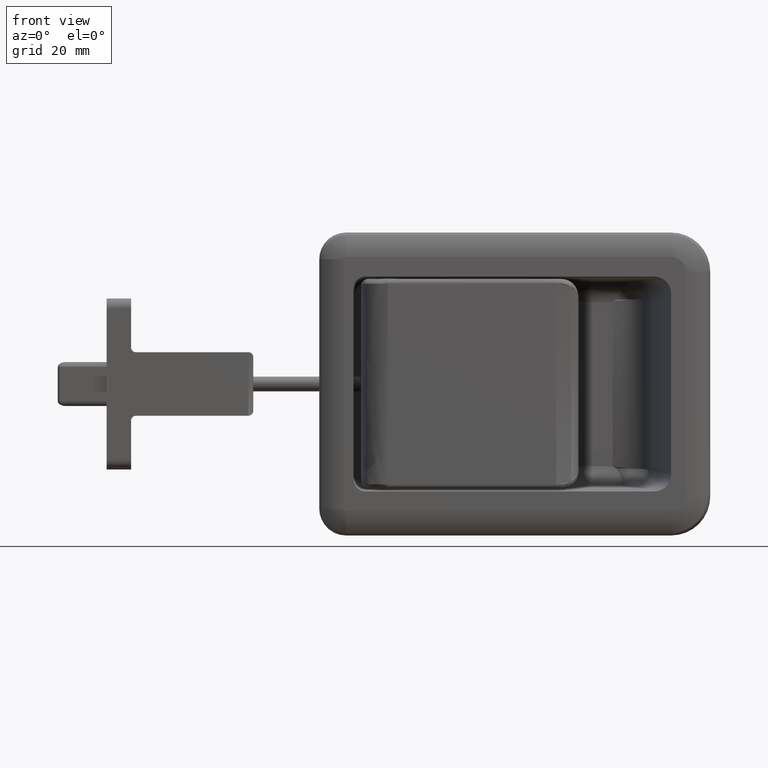
[diagram: clean part render]
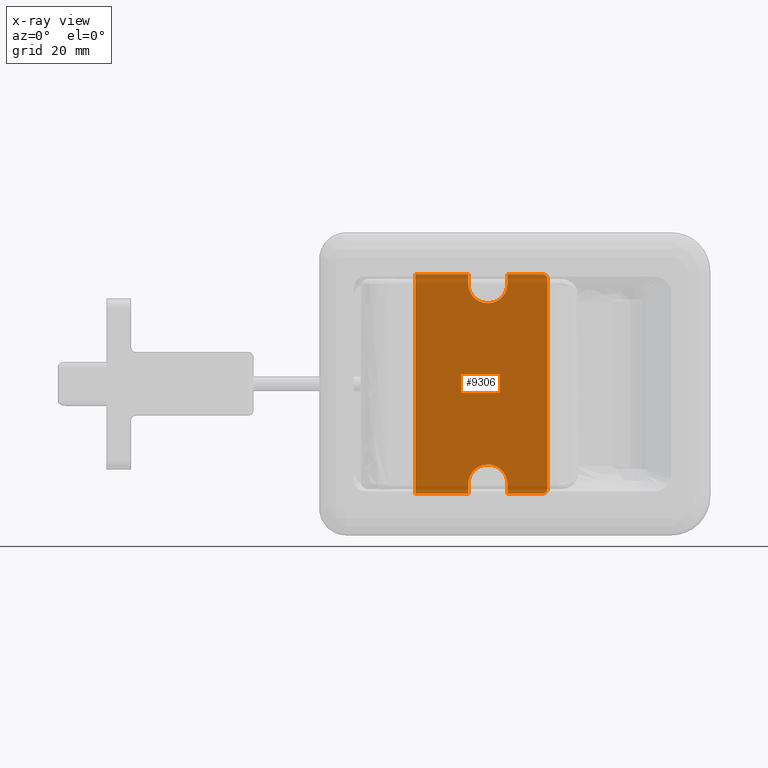
[diagram: x-ray — body ghosted, one internal face saturated and labeled with its STEP entity id]
A machine part, front view, then the same camera in x-ray: the body is ghosted and one INTERNAL B-rep face — a face not visible from any outside direction — is saturated and labeled: STEP entity #9306.
In plain terms, the highlighted face is a freeform B-spline surface patch.
Its self-contained STEP definition (entity closure, byte-faithful):
#8289=CARTESIAN_POINT('',(16.500000000000000,11.750000000000000,22.449999999999999));
#8290=VERTEX_POINT('',#8289);
#8296=CARTESIAN_POINT('',(16.500000000000000,11.750000000000000,20.500000000000000));
#8297=VERTEX_POINT('',#8296);
#8298=CARTESIAN_POINT('',(16.500000000000000,11.750000000000000,20.500000000000000));
#8299=CARTESIAN_POINT('',(16.500000000000000,11.750000000000000,22.449999999999999));
#8300=QUASI_UNIFORM_CURVE('',1,(#8298,#8299),.UNSPECIFIED.,.F.,.U.);
#8301=EDGE_CURVE('',#8297,#8290,#8300,.T.);
#8355=CARTESIAN_POINT('',(20.500000236385361,11.750000000000000,16.500000000000011));
#8356=VERTEX_POINT('',#8355);
#8357=CARTESIAN_POINT('',(20.500000236385361,11.750000000000000,16.500000000000011));
#8358=CARTESIAN_POINT('',(19.845314758766140,11.750000000000000,16.498779887935392));
#8359=CARTESIAN_POINT('',(18.701075226974250,11.750000000000011,16.787461324238699));
#8360=CARTESIAN_POINT('',(17.506043976024770,11.749999999999980,17.744498464292281));
#8361=CARTESIAN_POINT('',(16.713708441087800,11.750000000000020,18.962702487354719));
#8362=CARTESIAN_POINT('',(16.499041143794202,11.750000000000000,19.910735444061132));
#8363=CARTESIAN_POINT('',(16.500000000000000,11.750000000000000,20.500000000000000));
#8364=B_SPLINE_CURVE_WITH_KNOTS('',3,(#8357,#8358,#8359,#8360,#8361,#8362,#8363),.UNSPECIFIED.,.F.,.U.,(4,1,1,1,4),(0.000000762347808,1.963558906145554,3.436200243067706,4.516143088718932,6.283343110721847),.UNSPECIFIED.);
#8365=EDGE_CURVE('',#8356,#8297,#8364,.T.);
#8367=CARTESIAN_POINT('',(24.500000000000000,11.750000000000000,20.500000000000000));
#8368=VERTEX_POINT('',#8367);
#8369=CARTESIAN_POINT('',(24.500000000000000,11.750000000000000,20.500000000000000));
#8370=CARTESIAN_POINT('',(24.500921379876480,11.750000000000000,19.910774770877680));
#8371=CARTESIAN_POINT('',(24.286405906134021,11.750000000000011,18.962578156058150));
#8372=CARTESIAN_POINT('',(23.619832402668770,11.749999999999980,17.938497568508840));
#8373=CARTESIAN_POINT('',(22.857833962097171,11.750000000000000,17.212759140208341));
#8374=CARTESIAN_POINT('',(21.841590634235519,11.750000000000011,16.653463457895171));
#8375=CARTESIAN_POINT('',(20.958181826592568,11.750000000000030,16.499700374151370));
#8376=CARTESIAN_POINT('',(20.500000236385361,11.750000000000000,16.500000000000011));
#8377=B_SPLINE_CURVE_WITH_KNOTS('',3,(#8369,#8370,#8371,#8372,#8373,#8374,#8375,#8376),.UNSPECIFIED.,.F.,.U.,(4,1,1,1,1,4),(0.000000762668861,1.767200709791863,2.847143509533508,3.632475153519214,4.908871750445750,6.283342844253820),.UNSPECIFIED.);
#8378=EDGE_CURVE('',#8368,#8356,#8377,.T.);
#8401=CARTESIAN_POINT('',(24.500000000000000,11.750000000000000,22.449999999999999));
#8402=VERTEX_POINT('',#8401);
#8403=CARTESIAN_POINT('',(24.500000000000000,11.750000000000000,22.449999999999999));
#8404=CARTESIAN_POINT('',(24.500000000000000,11.750000000000000,20.500000000000000));
#8405=QUASI_UNIFORM_CURVE('',1,(#8403,#8404),.UNSPECIFIED.,.F.,.U.);
#8406=EDGE_CURVE('',#8402,#8368,#8405,.T.);
#8430=CARTESIAN_POINT('',(16.500000000000000,11.750000000000000,-20.500000000000000));
#8431=VERTEX_POINT('',#8430);
#8437=CARTESIAN_POINT('',(16.500000000000000,11.750000000000000,-22.449999999999999));
#8438=VERTEX_POINT('',#8437);
#8439=CARTESIAN_POINT('',(16.500000000000000,11.750000000000000,-20.500000000000000));
#8440=CARTESIAN_POINT('',(16.500000000000000,11.750000000000000,-22.449999999999999));
#8441=QUASI_UNIFORM_CURVE('',1,(#8439,#8440),.UNSPECIFIED.,.F.,.U.);
#8442=EDGE_CURVE('',#8431,#8438,#8441,.T.);
#8495=CARTESIAN_POINT('',(24.500000000000000,11.750000000000000,-20.500000000000000));
#8496=VERTEX_POINT('',#8495);
#8502=CARTESIAN_POINT('',(20.500000236385361,11.750000000000000,-16.500000000000011));
#8503=VERTEX_POINT('',#8502);
#8504=CARTESIAN_POINT('',(24.500000000000000,11.750000000000000,-20.500000000000000));
#8505=CARTESIAN_POINT('',(24.500921379876480,11.750000000000000,-19.910774770877680));
#8506=CARTESIAN_POINT('',(24.286405906134021,11.750000000000011,-18.962578156058150));
#8507=CARTESIAN_POINT('',(23.619832402668770,11.749999999999980,-17.938497568508840));
#8508=CARTESIAN_POINT('',(22.857833962097171,11.750000000000000,-17.212759140208341));
#8509=CARTESIAN_POINT('',(21.841590634235519,11.750000000000011,-16.653463457895171));
#8510=CARTESIAN_POINT('',(20.958181826592568,11.750000000000030,-16.499700374151370));
#8511=CARTESIAN_POINT('',(20.500000236385361,11.750000000000000,-16.500000000000011));
#8512=B_SPLINE_CURVE_WITH_KNOTS('',3,(#8504,#8505,#8506,#8507,#8508,#8509,#8510,#8511),.UNSPECIFIED.,.F.,.U.,(4,1,1,1,1,4),(0.000000762668861,1.767200709791863,2.847143509533508,3.632475153519214,4.908871750445750,6.283342844253820),.UNSPECIFIED.);
#8513=EDGE_CURVE('',#8496,#8503,#8512,.T.);
#8515=CARTESIAN_POINT('',(20.500000236385361,11.750000000000000,-16.500000000000011));
#8516=CARTESIAN_POINT('',(19.845314758766140,11.750000000000000,-16.498779887935392));
#8517=CARTESIAN_POINT('',(18.701075226974250,11.750000000000011,-16.787461324238699));
#8518=CARTESIAN_POINT('',(17.506043976024770,11.749999999999980,-17.744498464292281));
#8519=CARTESIAN_POINT('',(16.713708441087800,11.750000000000020,-18.962702487354719));
#8520=CARTESIAN_POINT('',(16.499041143794202,11.750000000000000,-19.910735444061132));
#8521=CARTESIAN_POINT('',(16.500000000000000,11.750000000000000,-20.500000000000000));
#8522=B_SPLINE_CURVE_WITH_KNOTS('',3,(#8515,#8516,#8517,#8518,#8519,#8520,#8521),.UNSPECIFIED.,.F.,.U.,(4,1,1,1,4),(0.000000762347808,1.963558906145554,3.436200243067706,4.516143088718932,6.283343110721847),.UNSPECIFIED.);
#8523=EDGE_CURVE('',#8503,#8431,#8522,.T.);
#8541=CARTESIAN_POINT('',(24.500000000000000,11.750000000000000,-22.449999999999999));
#8542=VERTEX_POINT('',#8541);
#8548=CARTESIAN_POINT('',(24.500000000000000,11.750000000000000,-22.449999999999999));
#8549=CARTESIAN_POINT('',(24.500000000000000,11.750000000000000,-20.500000000000000));
#8550=QUASI_UNIFORM_CURVE('',1,(#8548,#8549),.UNSPECIFIED.,.F.,.U.);
#8551=EDGE_CURVE('',#8542,#8496,#8550,.T.);
#8692=CARTESIAN_POINT('',(32.700000000000003,11.750000000000000,-21.449999999999999));
#8693=VERTEX_POINT('',#8692);
#8699=CARTESIAN_POINT('',(31.699999999999999,11.750000000000000,-22.449999999999999));
#8700=VERTEX_POINT('',#8699);
#8701=CARTESIAN_POINT('',(31.699999999999999,11.750000000000000,-22.449999999999999));
#8702=CARTESIAN_POINT('',(31.830929053859428,11.749999999999989,-22.450142709308320));
#8703=CARTESIAN_POINT('',(32.076252262380123,11.750000000000000,-22.401077544313619));
#8704=CARTESIAN_POINT('',(32.413133507162001,11.750000000000011,-22.188001019262920));
#8705=CARTESIAN_POINT('',(32.644695349418477,11.750000000000011,-21.859005033064339));
#8706=CARTESIAN_POINT('',(32.700102675364953,11.749999999999970,-21.580904480557329));
#8707=CARTESIAN_POINT('',(32.700000000000003,11.750000000000000,-21.449999999999999));
#8708=B_SPLINE_CURVE_WITH_KNOTS('',3,(#8701,#8702,#8703,#8704,#8705,#8706,#8707),.UNSPECIFIED.,.F.,.U.,(4,1,1,1,4),(0.000001361276398,0.392739491891071,0.736477614580219,1.178215753120450,1.570953883735302),.UNSPECIFIED.);
#8709=EDGE_CURVE('',#8700,#8693,#8708,.T.);
#8733=CARTESIAN_POINT('',(32.700000000000003,11.750000000000000,21.449999999999999));
#8734=VERTEX_POINT('',#8733);
#8735=CARTESIAN_POINT('',(31.699999999999999,11.750000000000000,22.449999999999999));
#8736=VERTEX_POINT('',#8735);
#8737=CARTESIAN_POINT('',(32.700000000000003,11.750000000000000,21.449999999999999));
#8738=CARTESIAN_POINT('',(32.700909702310412,11.749999999999989,21.662982282802339));
#8739=CARTESIAN_POINT('',(32.586133214638963,11.750000000000020,22.005252130907898));
#8740=CARTESIAN_POINT('',(32.190423047180580,11.749999999999980,22.363706732617828));
#8741=CARTESIAN_POINT('',(31.880092709584950,11.750000000000030,22.450487044332242));
#8742=CARTESIAN_POINT('',(31.699999999999999,11.750000000000000,22.449999999999999));
#8743=B_SPLINE_CURVE_WITH_KNOTS('',3,(#8737,#8738,#8739,#8740,#8741,#8742),.UNSPECIFIED.,.F.,.U.,(4,1,1,4),(0.000001361276436,0.638225147052642,1.030891485298246,1.570953883735319),.UNSPECIFIED.);
#8744=EDGE_CURVE('',#8734,#8736,#8743,.T.);
#9118=CARTESIAN_POINT('',(5.699999999999910,11.750000000000000,-22.449999999999999));
#9119=VERTEX_POINT('',#9118);
#9120=CARTESIAN_POINT('',(5.699999999999910,11.750000000000000,22.449999999999999));
#9121=VERTEX_POINT('',#9120);
#9122=CARTESIAN_POINT('',(5.699999999999910,11.750000000000000,-22.449999999999999));
#9123=CARTESIAN_POINT('',(5.699999999999910,11.750000000000000,22.449999999999999));
#9124=QUASI_UNIFORM_CURVE('',1,(#9122,#9123),.UNSPECIFIED.,.F.,.U.);
#9125=EDGE_CURVE('',#9119,#9121,#9124,.T.);
#9160=CARTESIAN_POINT('',(32.700000000000003,11.750000000000000,-21.449999999999999));
#9161=CARTESIAN_POINT('',(32.700000000000003,11.750000000000000,21.449999999999999));
#9162=QUASI_UNIFORM_CURVE('',1,(#9160,#9161),.UNSPECIFIED.,.F.,.U.);
#9163=EDGE_CURVE('',#8693,#8734,#9162,.T.);
#9210=CARTESIAN_POINT('',(16.500000000000000,11.750000000000000,-22.449999999999999));
#9211=CARTESIAN_POINT('',(5.699999999999910,11.750000000000000,-22.449999999999999));
#9212=QUASI_UNIFORM_CURVE('',1,(#9210,#9211),.UNSPECIFIED.,.F.,.U.);
#9213=EDGE_CURVE('',#8438,#9119,#9212,.T.);
#9226=CARTESIAN_POINT('',(31.699999999999999,11.750000000000000,-22.449999999999999));
#9227=CARTESIAN_POINT('',(24.500000000000000,11.750000000000000,-22.449999999999999));
#9228=QUASI_UNIFORM_CURVE('',1,(#9226,#9227),.UNSPECIFIED.,.F.,.U.);
#9229=EDGE_CURVE('',#8700,#8542,#9228,.T.);
#9246=CARTESIAN_POINT('',(5.699999999999910,11.750000000000000,22.449999999999999));
#9247=CARTESIAN_POINT('',(16.500000000000000,11.750000000000000,22.449999999999999));
#9248=QUASI_UNIFORM_CURVE('',1,(#9246,#9247),.UNSPECIFIED.,.F.,.U.);
#9249=EDGE_CURVE('',#9121,#8290,#9248,.T.);
#9274=CARTESIAN_POINT('',(24.500000000000000,11.750000000000000,22.449999999999999));
#9275=CARTESIAN_POINT('',(31.699999999999999,11.750000000000000,22.449999999999999));
#9276=QUASI_UNIFORM_CURVE('',1,(#9274,#9275),.UNSPECIFIED.,.F.,.U.);
#9277=EDGE_CURVE('',#8402,#8736,#9276,.T.);
#9283=CARTESIAN_POINT('',(4.351349798874464,11.750000000000000,-24.692755755953240));
#9284=CARTESIAN_POINT('',(4.351349798874464,11.750000000000000,24.692756157390519));
#9285=CARTESIAN_POINT('',(34.048650683923078,11.750000000000000,-24.692755755953240));
#9286=CARTESIAN_POINT('',(34.048650683923078,11.750000000000000,24.692756157390519));
#9287=B_SPLINE_SURFACE_WITH_KNOTS('',1,1,((#9283,#9285),(#9284,#9286)),.UNSPECIFIED.,.F.,.F.,.U.,(2,2),(2,2),(0.0,49.385511913343763),(0.0,29.697300885048609),.UNSPECIFIED.);
#9288=ORIENTED_EDGE('',*,*,#8406,.T.);
#9289=ORIENTED_EDGE('',*,*,#8378,.T.);
#9290=ORIENTED_EDGE('',*,*,#8365,.T.);
#9291=ORIENTED_EDGE('',*,*,#8301,.T.);
#9292=ORIENTED_EDGE('',*,*,#9249,.F.);
#9293=ORIENTED_EDGE('',*,*,#9125,.F.);
#9294=ORIENTED_EDGE('',*,*,#9213,.F.);
#9295=ORIENTED_EDGE('',*,*,#8442,.F.);
#9296=ORIENTED_EDGE('',*,*,#8523,.F.);
#9297=ORIENTED_EDGE('',*,*,#8513,.F.);
#9298=ORIENTED_EDGE('',*,*,#8551,.F.);
#9299=ORIENTED_EDGE('',*,*,#9229,.F.);
#9300=ORIENTED_EDGE('',*,*,#8709,.T.);
#9301=ORIENTED_EDGE('',*,*,#9163,.T.);
#9302=ORIENTED_EDGE('',*,*,#8744,.T.);
#9303=ORIENTED_EDGE('',*,*,#9277,.F.);
#9304=EDGE_LOOP('',(#9288,#9289,#9290,#9291,#9292,#9293,#9294,#9295,#9296,#9297,#9298,#9299,#9300,#9301,#9302,#9303));
#9305=FACE_OUTER_BOUND('',#9304,.T.);
#9306=ADVANCED_FACE('',(#9305),#9287,.F.);